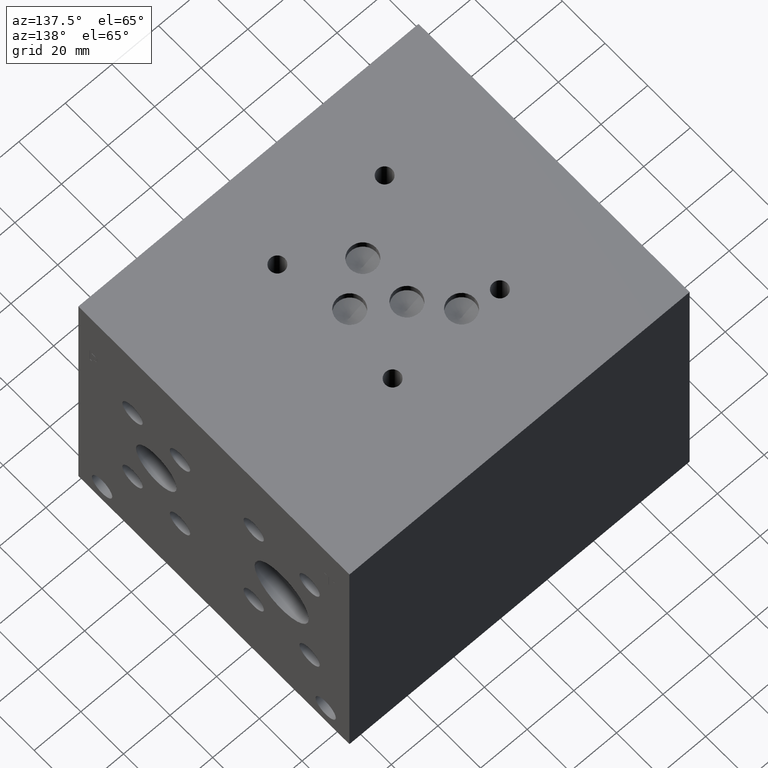
[diagram: clean part render]
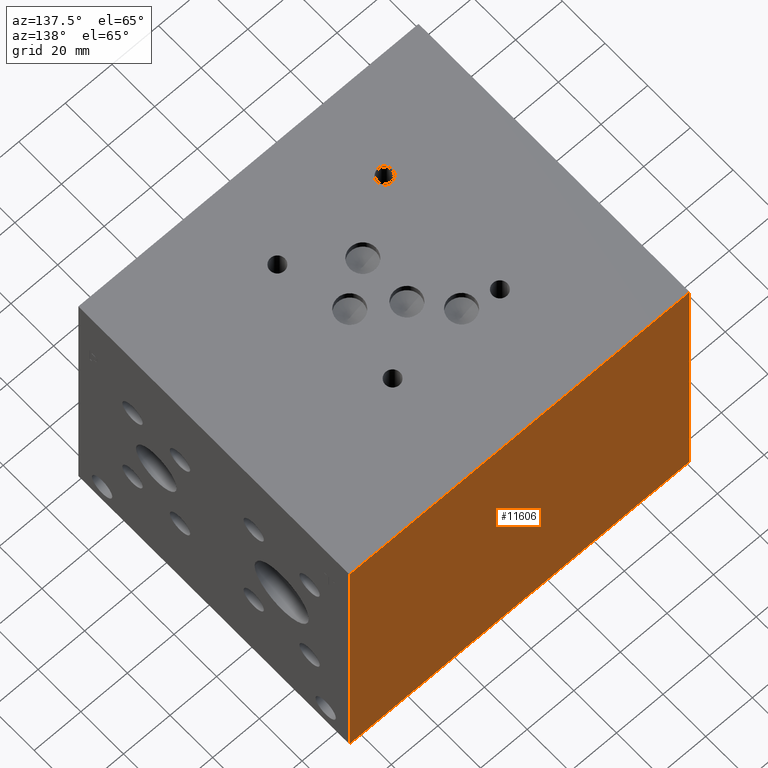
[diagram: same view with one face highlighted and labeled with its STEP entity id]
A machine part, auxiliary view. The second image highlights one B-rep face of the part: STEP entity #11606.
In plain terms, the highlighted planar face has unit normal (0, 1, 0).
Its self-contained STEP definition (entity closure, byte-faithful):
#886=PLANE('',#12380);
#1482=FACE_OUTER_BOUND('',#2187,.T.);
#2187=EDGE_LOOP('',(#10435,#10436,#10437,#10438));
#2995=LINE('',#18325,#4067);
#3079=LINE('',#18679,#4151);
#3270=LINE('',#19826,#4342);
#3271=LINE('',#19827,#4343);
#4067=VECTOR('',#13742,10.);
#4151=VECTOR('',#13930,10.);
#4342=VECTOR('',#14969,10.);
#4343=VECTOR('',#14970,10.);
#5274=VERTEX_POINT('',#18322);
#5275=VERTEX_POINT('',#18324);
#5364=VERTEX_POINT('',#18675);
#5365=VERTEX_POINT('',#18677);
#6715=EDGE_CURVE('',#5274,#5275,#2995,.T.);
#6839=EDGE_CURVE('',#5364,#5365,#3079,.T.);
#7289=EDGE_CURVE('',#5274,#5364,#3270,.T.);
#7290=EDGE_CURVE('',#5275,#5365,#3271,.T.);
#10435=ORIENTED_EDGE('',*,*,#7289,.T.);
#10436=ORIENTED_EDGE('',*,*,#6839,.T.);
#10437=ORIENTED_EDGE('',*,*,#7290,.F.);
#10438=ORIENTED_EDGE('',*,*,#6715,.F.);
#11606=ADVANCED_FACE('',(#1482),#886,.T.);
#12380=AXIS2_PLACEMENT_3D('',#19825,#14967,#14968);
#13742=DIRECTION('',(0.,0.,1.));
#13930=DIRECTION('',(0.,0.,1.));
#14967=DIRECTION('center_axis',(0.,1.,0.));
#14968=DIRECTION('ref_axis',(-1.,0.,0.));
#14969=DIRECTION('',(-1.,0.,0.));
#14970=DIRECTION('',(-1.,0.,0.));
#18322=CARTESIAN_POINT('',(146.05,127.,0.));
#18324=CARTESIAN_POINT('',(146.05,127.,127.));
#18325=CARTESIAN_POINT('',(146.05,127.,0.));
#18675=CARTESIAN_POINT('',(0.,127.,0.));
#18677=CARTESIAN_POINT('',(0.,127.,127.));
#18679=CARTESIAN_POINT('',(0.,127.,0.));
#19825=CARTESIAN_POINT('Origin',(146.05,127.,0.));
#19826=CARTESIAN_POINT('',(146.05,127.,0.));
#19827=CARTESIAN_POINT('',(146.05,127.,127.));